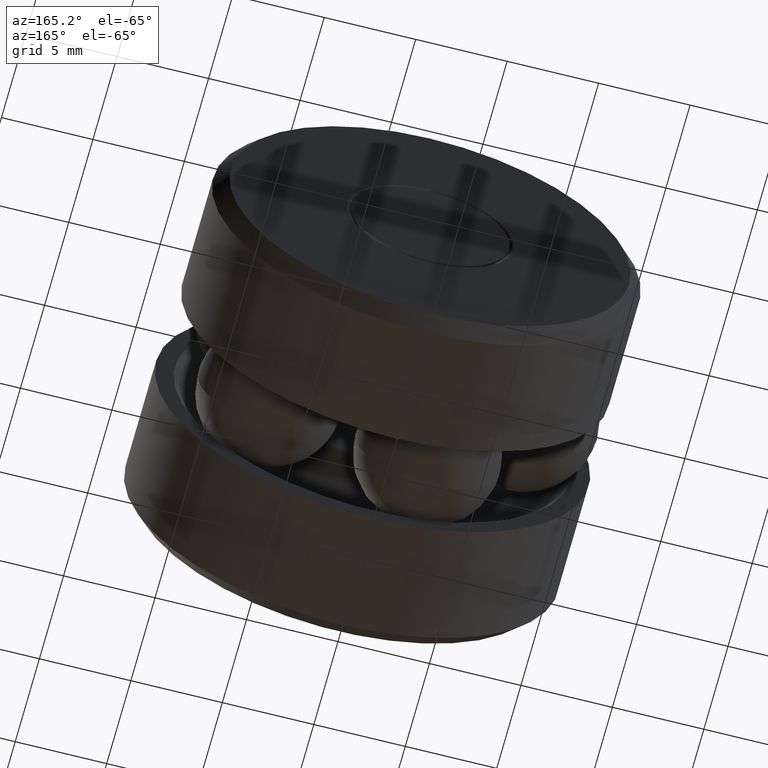
[diagram: clean part render]
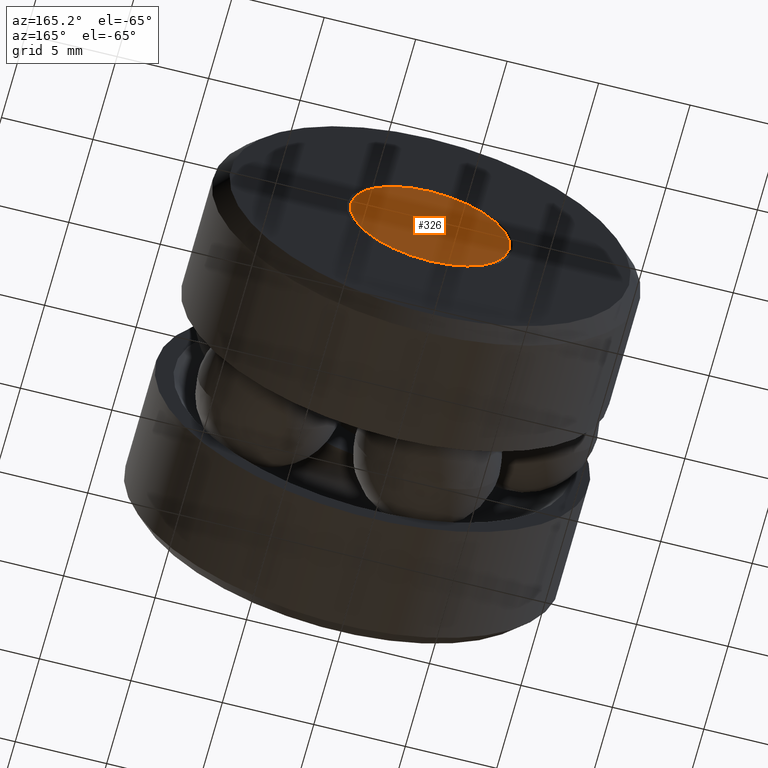
[diagram: same view with one face highlighted and labeled with its STEP entity id]
A machine part, auxiliary view. The second image highlights one B-rep face of the part: STEP entity #326.
In plain terms, the highlighted planar face has unit normal (-0, 1, 0).
Its self-contained STEP definition (entity closure, byte-faithful):
#6 = CARTESIAN_POINT ( 'NONE',  ( 0.0000000000000000000, 0.7500000000000001100, 0.0000000000000000000 ) ) ;
#151 = EDGE_LOOP ( 'NONE', ( #214 ) ) ;
#214 = ORIENTED_EDGE ( 'NONE', *, *, #328, .T. ) ;
#228 = DIRECTION ( 'NONE',  ( 0.0000000000000000000, 0.0000000000000000000, 1.000000000000000000 ) ) ;
#230 = DIRECTION ( 'NONE',  ( -0.0000000000000000000, 1.000000000000000000, 0.0000000000000000000 ) ) ;
#233 = VERTEX_POINT ( 'NONE', #378 ) ;
#241 = PLANE ( 'NONE',  #458 ) ;
#326 = ADVANCED_FACE ( 'NONE', ( #399 ), #241, .T. ) ;
#328 = EDGE_CURVE ( 'NONE', #233, #233, #473, .T. ) ;
#373 = AXIS2_PLACEMENT_3D ( 'NONE', #446, #445, #400 ) ;
#378 = CARTESIAN_POINT ( 'NONE',  ( 0.0000000000000000000, 0.7500000000000001100, 0.1717499999999990700 ) ) ;
#399 = FACE_OUTER_BOUND ( 'NONE', #151, .T. ) ;
#400 = DIRECTION ( 'NONE',  ( 0.0000000000000000000, 0.0000000000000000000, 1.000000000000000000 ) ) ;
#445 = DIRECTION ( 'NONE',  ( -0.0000000000000000000, 1.000000000000000000, -0.0000000000000000000 ) ) ;
#446 = CARTESIAN_POINT ( 'NONE',  ( 0.0000000000000000000, 0.7500000000000001100, 0.0000000000000000000 ) ) ;
#458 = AXIS2_PLACEMENT_3D ( 'NONE', #6, #230, #228 ) ;
#473 = CIRCLE ( 'NONE', #373, 0.1717499999999990700 ) ;